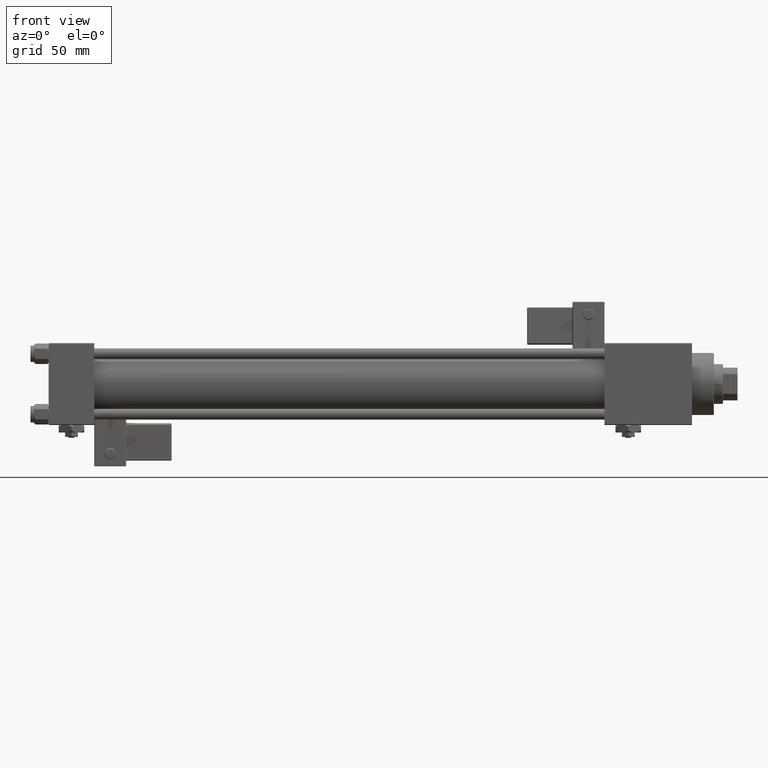
[diagram: clean part render]
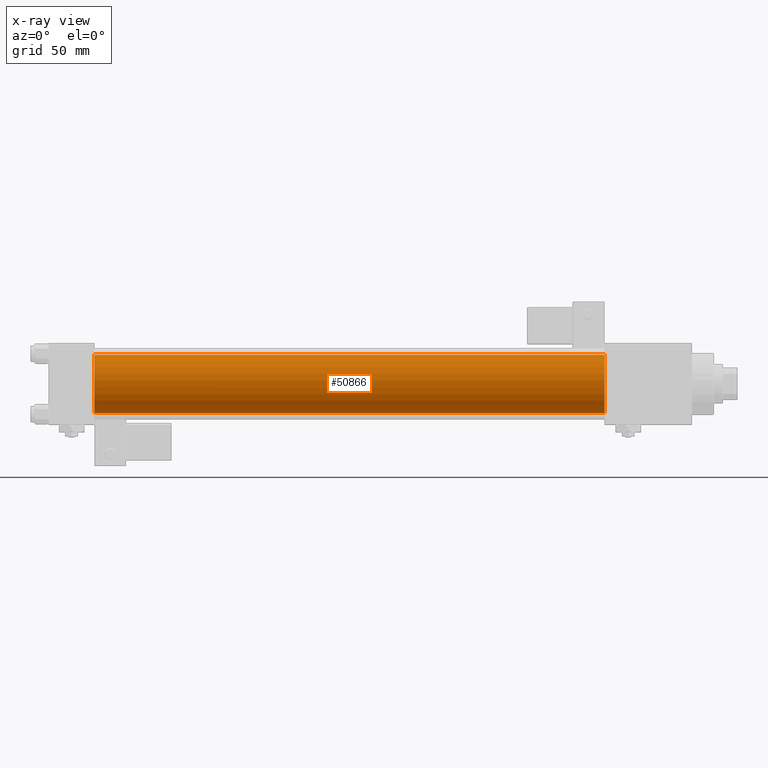
[diagram: x-ray — body ghosted, one internal face saturated and labeled with its STEP entity id]
A machine part, front view, then the same camera in x-ray: the body is ghosted and one INTERNAL B-rep face — a face not visible from any outside direction — is saturated and labeled: STEP entity #50866.
In plain terms, the highlighted cylindrical surface (edge-blend (fillet) strip) has radius 16 mm, axis along (-1, -0, -0).
Its self-contained STEP definition (entity closure, byte-faithful):
#360 = CARTESIAN_POINT ( 'NONE',  ( 25.00000000000000000, -2.602085213965210642E-15, 0.000000000000000000 ) ) ;
#1441 = DIRECTION ( 'NONE',  ( -1.000000000000000000, -0.000000000000000000, -0.000000000000000000 ) ) ;
#1640 = CARTESIAN_POINT ( 'NONE',  ( 25.00000000000000000, -6.426503353294456087E-16, -16.00000000000000000 ) ) ;
#2258 = ORIENTED_EDGE ( 'NONE', *, *, #48050, .T. ) ;
#2280 = AXIS2_PLACEMENT_3D ( 'NONE', #9202, #5804, #14002 ) ;
#3226 = VERTEX_POINT ( 'NONE', #14918 ) ;
#5098 = VERTEX_POINT ( 'NONE', #25795 ) ;
#5804 = DIRECTION ( 'NONE',  ( 1.000000000000000000, 0.000000000000000000, 0.000000000000000000 ) ) ;
#7131 = CARTESIAN_POINT ( 'NONE',  ( 305.0000000000000568, -2.602085213965210642E-15, 16.00000000000000000 ) ) ;
#8255 = DIRECTION ( 'NONE',  ( 1.000000000000000000, 0.000000000000000000, 0.000000000000000000 ) ) ;
#9202 = CARTESIAN_POINT ( 'NONE',  ( 305.0000000000000568, -2.602085213965210642E-15, 0.000000000000000000 ) ) ;
#10321 = ORIENTED_EDGE ( 'NONE', *, *, #48801, .F. ) ;
#13108 = AXIS2_PLACEMENT_3D ( 'NONE', #41203, #1441, #18378 ) ;
#14002 = DIRECTION ( 'NONE',  ( 0.000000000000000000, 0.000000000000000000, -1.000000000000000000 ) ) ;
#14918 = CARTESIAN_POINT ( 'NONE',  ( 25.00000000000000000, -2.602085213965210642E-15, 16.00000000000000000 ) ) ;
#18378 = DIRECTION ( 'NONE',  ( 0.000000000000000000, 0.000000000000000000, 1.000000000000000000 ) ) ;
#18394 = VECTOR ( 'NONE', #39752, 1000.000000000000000 ) ;
#19326 = AXIS2_PLACEMENT_3D ( 'NONE', #360, #8255, #35317 ) ;
#22561 = CARTESIAN_POINT ( 'NONE',  ( 305.0000000000000568, -6.426503353294456087E-16, -16.00000000000000000 ) ) ;
#22882 = CYLINDRICAL_SURFACE ( 'NONE', #13108, 16.00000000000000000 ) ;
#24003 = FACE_OUTER_BOUND ( 'NONE', #45900, .T. ) ;
#25795 = CARTESIAN_POINT ( 'NONE',  ( 305.0000000000000568, -6.426503353294456087E-16, -16.00000000000000000 ) ) ;
#33455 = ORIENTED_EDGE ( 'NONE', *, *, #48108, .F. ) ;
#34581 = VERTEX_POINT ( 'NONE', #1640 ) ;
#35317 = DIRECTION ( 'NONE',  ( 0.000000000000000000, 0.000000000000000000, -1.000000000000000000 ) ) ;
#39752 = DIRECTION ( 'NONE',  ( -1.000000000000000000, -0.000000000000000000, -0.000000000000000000 ) ) ;
#41203 = CARTESIAN_POINT ( 'NONE',  ( 305.0000000000000568, -2.602085213965210642E-15, 0.000000000000000000 ) ) ;
#41440 = LINE ( 'NONE', #49629, #48138 ) ;
#41941 = CIRCLE ( 'NONE', #2280, 16.00000000000000000 ) ;
#43627 = CIRCLE ( 'NONE', #19326, 16.00000000000000000 ) ;
#45360 = VERTEX_POINT ( 'NONE', #7131 ) ;
#45425 = ORIENTED_EDGE ( 'NONE', *, *, #50082, .T. ) ;
#45900 = EDGE_LOOP ( 'NONE', ( #45425, #2258, #10321, #33455 ) ) ;
#48050 = EDGE_CURVE ( 'NONE', #5098, #34581, #48499, .T. ) ;
#48108 = EDGE_CURVE ( 'NONE', #45360, #3226, #41440, .T. ) ;
#48138 = VECTOR ( 'NONE', #49073, 1000.000000000000000 ) ;
#48499 = LINE ( 'NONE', #22561, #18394 ) ;
#48801 = EDGE_CURVE ( 'NONE', #3226, #34581, #43627, .T. ) ;
#49073 = DIRECTION ( 'NONE',  ( -1.000000000000000000, -0.000000000000000000, -0.000000000000000000 ) ) ;
#49629 = CARTESIAN_POINT ( 'NONE',  ( 305.0000000000000568, -2.602085213965210642E-15, 16.00000000000000000 ) ) ;
#50082 = EDGE_CURVE ( 'NONE', #45360, #5098, #41941, .T. ) ;
#50866 = ADVANCED_FACE ( 'NONE', ( #24003 ), #22882, .F. ) ;